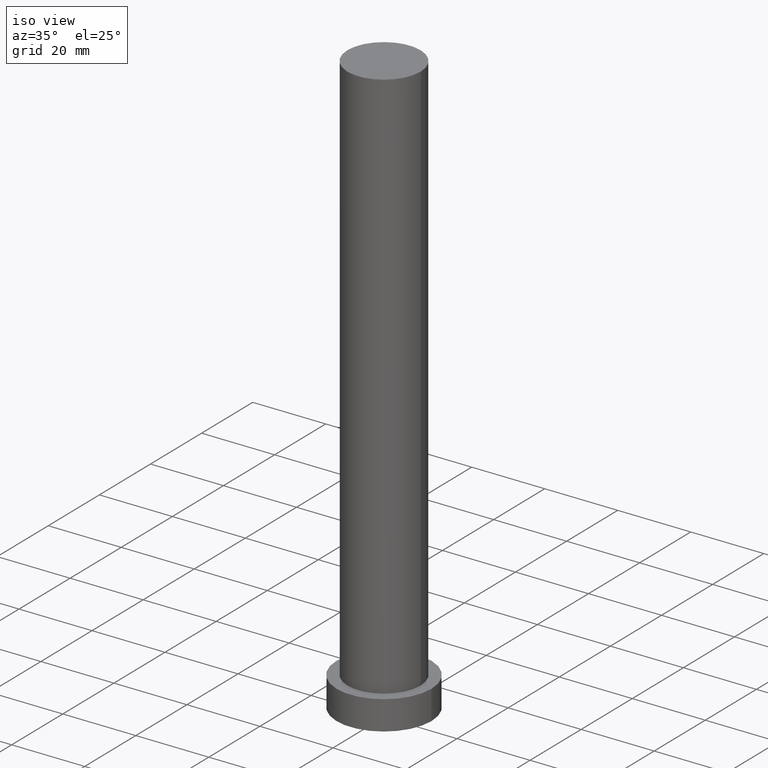
[diagram: clean part render]
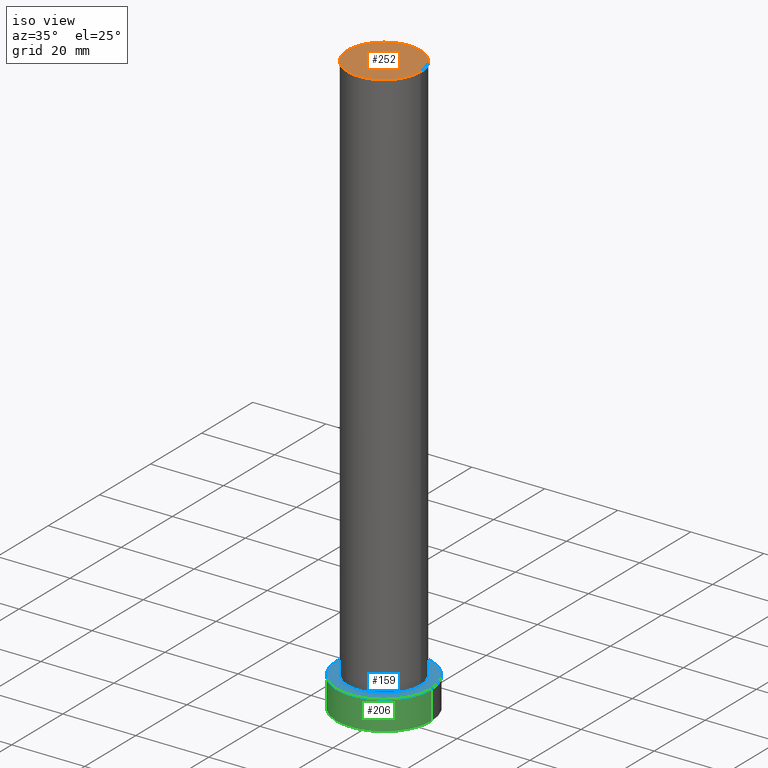
[diagram: same view with three faces highlighted in distinct colors, each labeled with its STEP entity id]
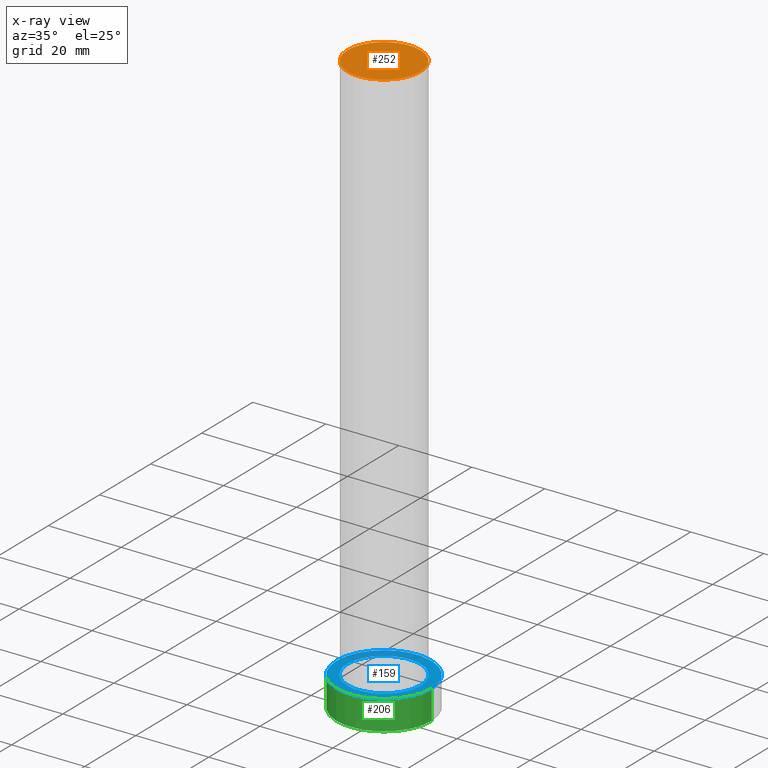
[diagram: x-ray of the same camera — body ghosted, the three highlighted faces saturated]
A machine part, iso view with three faces highlighted in distinct colors.
The next image is the same camera in x-ray (body ghosted, the three faces saturated) — at least one of them is partly hidden behind the body in this view.
Their STEP definitions:

[orange] entity #252 — the highlighted planar face has unit normal (0, 0, 1).
#9 = DIRECTION ( 'NONE',  ( 1.000000000000000000, 0.000000000000000000, 0.000000000000000000 ) ) ;
#44 = AXIS2_PLACEMENT_3D ( 'NONE', #169, #191, #237 ) ;
#53 = AXIS2_PLACEMENT_3D ( 'NONE', #162, #74, #216 ) ;
#74 = DIRECTION ( 'NONE',  ( 0.000000000000000000, 0.000000000000000000, 1.000000000000000000 ) ) ;
#80 = EDGE_LOOP ( 'NONE', ( #105, #96 ) ) ;
#96 = ORIENTED_EDGE ( 'NONE', *, *, #185, .T. ) ;
#101 = CIRCLE ( 'NONE', #243, 10.00000000000000000 ) ;
#103 = EDGE_CURVE ( 'NONE', #214, #175, #193, .T. ) ;
#105 = ORIENTED_EDGE ( 'NONE', *, *, #103, .T. ) ;
#147 = CARTESIAN_POINT ( 'NONE',  ( 10.00000000000000000, 1.224646799147353256E-15, 160.0000000000000000 ) ) ;
#162 = CARTESIAN_POINT ( 'NONE',  ( 0.000000000000000000, 0.000000000000000000, 160.0000000000000000 ) ) ;
#169 = CARTESIAN_POINT ( 'NONE',  ( 0.000000000000000000, 0.000000000000000000, 160.0000000000000000 ) ) ;
#175 = VERTEX_POINT ( 'NONE', #147 ) ;
#185 = EDGE_CURVE ( 'NONE', #175, #214, #101, .T. ) ;
#189 = PLANE ( 'NONE',  #44 ) ;
#190 = CARTESIAN_POINT ( 'NONE',  ( -10.00000000000000000, 0.000000000000000000, 160.0000000000000000 ) ) ;
#191 = DIRECTION ( 'NONE',  ( 0.000000000000000000, 0.000000000000000000, 1.000000000000000000 ) ) ;
#193 = CIRCLE ( 'NONE', #53, 10.00000000000000000 ) ;
#214 = VERTEX_POINT ( 'NONE', #190 ) ;
#216 = DIRECTION ( 'NONE',  ( 1.000000000000000000, 0.000000000000000000, 0.000000000000000000 ) ) ;
#220 = CARTESIAN_POINT ( 'NONE',  ( 0.000000000000000000, 0.000000000000000000, 160.0000000000000000 ) ) ;
#222 = FACE_OUTER_BOUND ( 'NONE', #80, .T. ) ;
#237 = DIRECTION ( 'NONE',  ( 1.000000000000000000, 0.000000000000000000, -0.000000000000000000 ) ) ;
#241 = DIRECTION ( 'NONE',  ( 0.000000000000000000, 0.000000000000000000, 1.000000000000000000 ) ) ;
#243 = AXIS2_PLACEMENT_3D ( 'NONE', #220, #241, #9 ) ;
#252 = ADVANCED_FACE ( 'NONE', ( #222 ), #189, .T. ) ;

[blue] entity #159 — the highlighted planar face has unit normal (0, 0, 1).
#1 = AXIS2_PLACEMENT_3D ( 'NONE', #42, #127, #87 ) ;
#3 = CARTESIAN_POINT ( 'NONE',  ( 0.000000000000000000, 0.000000000000000000, 8.000000000000000000 ) ) ;
#4 = CARTESIAN_POINT ( 'NONE',  ( 10.00000000000000000, 1.224646799147353256E-15, 8.000000000000000000 ) ) ;
#14 = AXIS2_PLACEMENT_3D ( 'NONE', #208, #166, #207 ) ;
#17 = ORIENTED_EDGE ( 'NONE', *, *, #149, .F. ) ;
#26 = CIRCLE ( 'NONE', #61, 10.00000000000000000 ) ;
#32 = CIRCLE ( 'NONE', #1, 13.00000000000000178 ) ;
#33 = ORIENTED_EDGE ( 'NONE', *, *, #132, .T. ) ;
#37 = DIRECTION ( 'NONE',  ( 0.000000000000000000, 0.000000000000000000, 1.000000000000000000 ) ) ;
#42 = CARTESIAN_POINT ( 'NONE',  ( 0.000000000000000000, 0.000000000000000000, 8.000000000000000000 ) ) ;
#56 = VERTEX_POINT ( 'NONE', #228 ) ;
#58 = ORIENTED_EDGE ( 'NONE', *, *, #255, .T. ) ;
#61 = AXIS2_PLACEMENT_3D ( 'NONE', #3, #128, #84 ) ;
#62 = CARTESIAN_POINT ( 'NONE',  ( 0.000000000000000000, 0.000000000000000000, 8.000000000000000000 ) ) ;
#65 = AXIS2_PLACEMENT_3D ( 'NONE', #211, #37, #213 ) ;
#67 = CARTESIAN_POINT ( 'NONE',  ( 13.00000000000000178, 1.592040838891559293E-15, 8.000000000000000000 ) ) ;
#75 = CIRCLE ( 'NONE', #65, 13.00000000000000178 ) ;
#84 = DIRECTION ( 'NONE',  ( 1.000000000000000000, 0.000000000000000000, 0.000000000000000000 ) ) ;
#87 = DIRECTION ( 'NONE',  ( 1.000000000000000000, 0.000000000000000000, 0.000000000000000000 ) ) ;
#110 = ORIENTED_EDGE ( 'NONE', *, *, #151, .F. ) ;
#127 = DIRECTION ( 'NONE',  ( 0.000000000000000000, 0.000000000000000000, 1.000000000000000000 ) ) ;
#128 = DIRECTION ( 'NONE',  ( 0.000000000000000000, 0.000000000000000000, 1.000000000000000000 ) ) ;
#131 = DIRECTION ( 'NONE',  ( 1.000000000000000000, 0.000000000000000000, 0.000000000000000000 ) ) ;
#132 = EDGE_CURVE ( 'NONE', #170, #56, #75, .T. ) ;
#134 = VERTEX_POINT ( 'NONE', #197 ) ;
#144 = FACE_BOUND ( 'NONE', #160, .T. ) ;
#149 = EDGE_CURVE ( 'NONE', #212, #134, #218, .T. ) ;
#151 = EDGE_CURVE ( 'NONE', #134, #212, #26, .T. ) ;
#156 = AXIS2_PLACEMENT_3D ( 'NONE', #62, #187, #131 ) ;
#159 = ADVANCED_FACE ( 'NONE', ( #144, #168 ), #223, .T. ) ;
#160 = EDGE_LOOP ( 'NONE', ( #110, #17 ) ) ;
#166 = DIRECTION ( 'NONE',  ( 0.000000000000000000, 0.000000000000000000, 1.000000000000000000 ) ) ;
#168 = FACE_OUTER_BOUND ( 'NONE', #234, .T. ) ;
#170 = VERTEX_POINT ( 'NONE', #67 ) ;
#187 = DIRECTION ( 'NONE',  ( 0.000000000000000000, 0.000000000000000000, 1.000000000000000000 ) ) ;
#197 = CARTESIAN_POINT ( 'NONE',  ( -10.00000000000000000, 0.000000000000000000, 8.000000000000000000 ) ) ;
#207 = DIRECTION ( 'NONE',  ( 1.000000000000000000, 0.000000000000000000, -0.000000000000000000 ) ) ;
#208 = CARTESIAN_POINT ( 'NONE',  ( 0.000000000000000000, 0.000000000000000000, 8.000000000000000000 ) ) ;
#211 = CARTESIAN_POINT ( 'NONE',  ( 0.000000000000000000, 0.000000000000000000, 8.000000000000000000 ) ) ;
#212 = VERTEX_POINT ( 'NONE', #4 ) ;
#213 = DIRECTION ( 'NONE',  ( 1.000000000000000000, 0.000000000000000000, 0.000000000000000000 ) ) ;
#218 = CIRCLE ( 'NONE', #156, 10.00000000000000000 ) ;
#223 = PLANE ( 'NONE',  #14 ) ;
#228 = CARTESIAN_POINT ( 'NONE',  ( -13.00000000000000178, 0.000000000000000000, 8.000000000000000000 ) ) ;
#234 = EDGE_LOOP ( 'NONE', ( #58, #33 ) ) ;
#255 = EDGE_CURVE ( 'NONE', #56, #170, #32, .T. ) ;

[green] entity #206 — the highlighted cylindrical surface (partial cylindrical patch) has radius 13 mm, axis along (-0, -0, -1).
#1 = AXIS2_PLACEMENT_3D ( 'NONE', #42, #127, #87 ) ;
#6 = CIRCLE ( 'NONE', #117, 13.00000000000000178 ) ;
#16 = ORIENTED_EDGE ( 'NONE', *, *, #255, .F. ) ;
#21 = FACE_OUTER_BOUND ( 'NONE', #177, .T. ) ;
#22 = CYLINDRICAL_SURFACE ( 'NONE', #77, 13.00000000000000178 ) ;
#25 = EDGE_CURVE ( 'NONE', #170, #51, #153, .T. ) ;
#32 = CIRCLE ( 'NONE', #1, 13.00000000000000178 ) ;
#42 = CARTESIAN_POINT ( 'NONE',  ( 0.000000000000000000, 0.000000000000000000, 8.000000000000000000 ) ) ;
#51 = VERTEX_POINT ( 'NONE', #229 ) ;
#52 = CARTESIAN_POINT ( 'NONE',  ( 0.000000000000000000, 0.000000000000000000, 0.000000000000000000 ) ) ;
#54 = EDGE_CURVE ( 'NONE', #92, #51, #6, .T. ) ;
#55 = LINE ( 'NONE', #248, #69 ) ;
#56 = VERTEX_POINT ( 'NONE', #228 ) ;
#67 = CARTESIAN_POINT ( 'NONE',  ( 13.00000000000000178, 1.592040838891559293E-15, 8.000000000000000000 ) ) ;
#69 = VECTOR ( 'NONE', #86, 1000.000000000000000 ) ;
#72 = ORIENTED_EDGE ( 'NONE', *, *, #25, .F. ) ;
#77 = AXIS2_PLACEMENT_3D ( 'NONE', #98, #99, #205 ) ;
#86 = DIRECTION ( 'NONE',  ( -0.000000000000000000, -0.000000000000000000, -1.000000000000000000 ) ) ;
#87 = DIRECTION ( 'NONE',  ( 1.000000000000000000, 0.000000000000000000, 0.000000000000000000 ) ) ;
#92 = VERTEX_POINT ( 'NONE', #202 ) ;
#94 = DIRECTION ( 'NONE',  ( 1.000000000000000000, 0.000000000000000000, 0.000000000000000000 ) ) ;
#98 = CARTESIAN_POINT ( 'NONE',  ( 0.000000000000000000, 0.000000000000000000, 8.000000000000000000 ) ) ;
#99 = DIRECTION ( 'NONE',  ( -0.000000000000000000, -0.000000000000000000, -1.000000000000000000 ) ) ;
#117 = AXIS2_PLACEMENT_3D ( 'NONE', #52, #253, #94 ) ;
#127 = DIRECTION ( 'NONE',  ( 0.000000000000000000, 0.000000000000000000, 1.000000000000000000 ) ) ;
#137 = ORIENTED_EDGE ( 'NONE', *, *, #54, .T. ) ;
#146 = EDGE_CURVE ( 'NONE', #56, #92, #55, .T. ) ;
#153 = LINE ( 'NONE', #182, #226 ) ;
#170 = VERTEX_POINT ( 'NONE', #67 ) ;
#177 = EDGE_LOOP ( 'NONE', ( #72, #16, #201, #137 ) ) ;
#182 = CARTESIAN_POINT ( 'NONE',  ( 13.00000000000000178, 1.592040838891559293E-15, 8.000000000000000000 ) ) ;
#201 = ORIENTED_EDGE ( 'NONE', *, *, #146, .T. ) ;
#202 = CARTESIAN_POINT ( 'NONE',  ( -13.00000000000000178, 0.000000000000000000, 0.000000000000000000 ) ) ;
#205 = DIRECTION ( 'NONE',  ( -1.000000000000000000, 0.000000000000000000, 0.000000000000000000 ) ) ;
#206 = ADVANCED_FACE ( 'NONE', ( #21 ), #22, .T. ) ;
#226 = VECTOR ( 'NONE', #250, 1000.000000000000000 ) ;
#228 = CARTESIAN_POINT ( 'NONE',  ( -13.00000000000000178, 0.000000000000000000, 8.000000000000000000 ) ) ;
#229 = CARTESIAN_POINT ( 'NONE',  ( 13.00000000000000178, 1.592040838891559293E-15, 0.000000000000000000 ) ) ;
#248 = CARTESIAN_POINT ( 'NONE',  ( -13.00000000000000178, 0.000000000000000000, 8.000000000000000000 ) ) ;
#250 = DIRECTION ( 'NONE',  ( -0.000000000000000000, -0.000000000000000000, -1.000000000000000000 ) ) ;
#253 = DIRECTION ( 'NONE',  ( 0.000000000000000000, 0.000000000000000000, 1.000000000000000000 ) ) ;
#255 = EDGE_CURVE ( 'NONE', #56, #170, #32, .T. ) ;